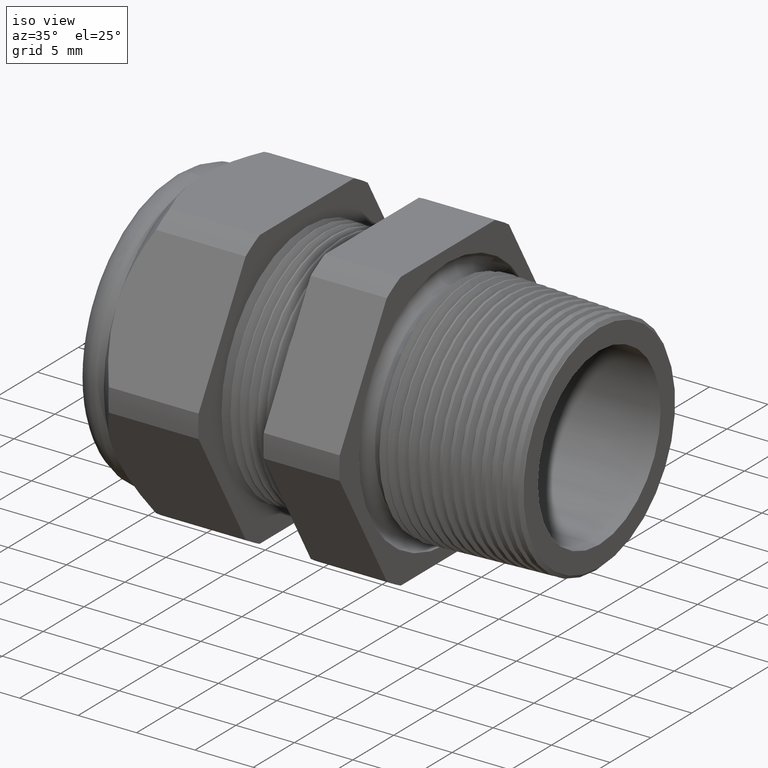
[diagram: clean part render]
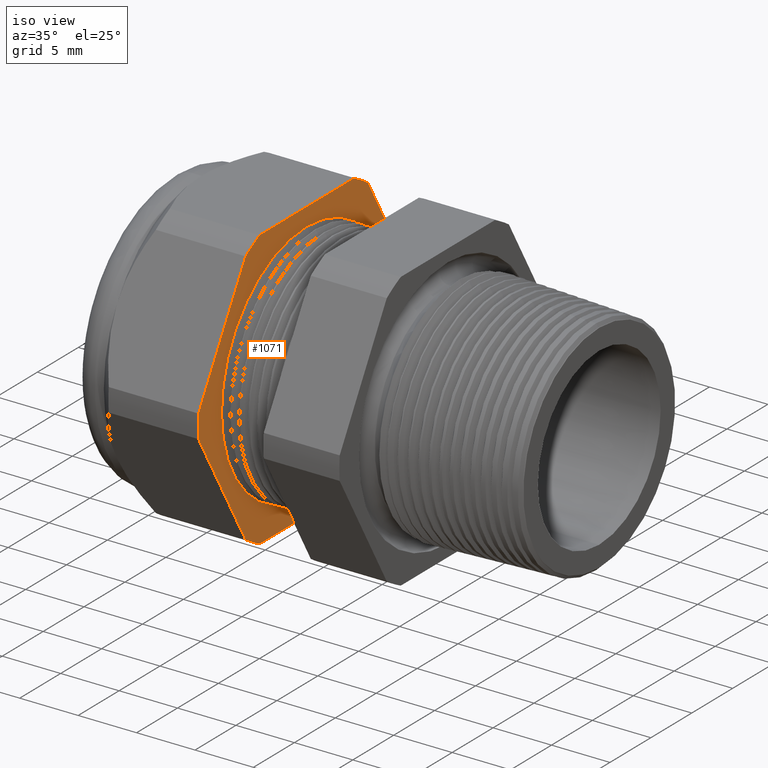
[diagram: same view with one face highlighted and labeled with its STEP entity id]
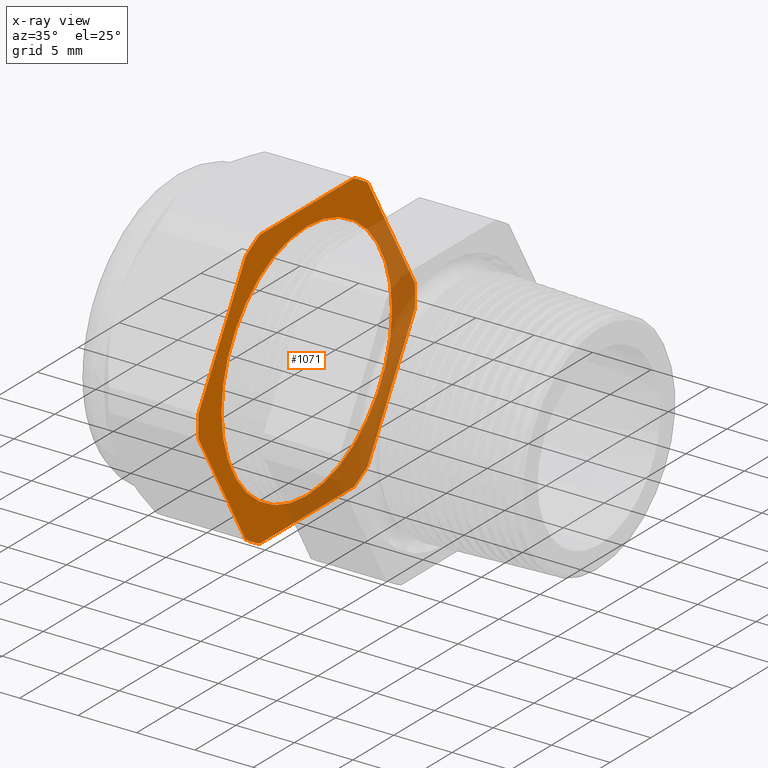
[diagram: x-ray of the same camera — body ghosted, the highlighted face saturated]
A machine part, iso view. The second image highlights one B-rep face of the part: STEP entity #1071.
The next image is the same camera in x-ray: the body ghosted, the highlighted face saturated — about 38% of this face is hidden behind the body in this view.
In plain terms, the highlighted planar face has unit normal (1, 0, 0).
Its self-contained STEP definition (entity closure, byte-faithful):
#10 = VERTEX_POINT ( 'NONE', #1767 ) ;
#25 = VERTEX_POINT ( 'NONE', #1793 ) ;
#26 = EDGE_CURVE ( 'NONE', #72, #25, #1792, .T. ) ;
#72 = VERTEX_POINT ( 'NONE', #1898 ) ;
#221 = EDGE_CURVE ( 'NONE', #226, #463, #2197, .T. ) ;
#225 = VERTEX_POINT ( 'NONE', #2185 ) ;
#226 = VERTEX_POINT ( 'NONE', #2184 ) ;
#261 = EDGE_CURVE ( 'NONE', #10, #226, #2288, .T. ) ;
#280 = VERTEX_POINT ( 'NONE', #2353 ) ;
#285 = EDGE_CURVE ( 'NONE', #225, #10, #2342, .T. ) ;
#293 = EDGE_CURVE ( 'NONE', #626, #280, #2385, .T. ) ;
#403 = VERTEX_POINT ( 'NONE', #2565 ) ;
#404 = EDGE_CURVE ( 'NONE', #280, #225, #2564, .T. ) ;
#426 = EDGE_CURVE ( 'NONE', #623, #605, #2591, .T. ) ;
#439 = VERTEX_POINT ( 'NONE', #2617 ) ;
#444 = EDGE_CURVE ( 'NONE', #403, #623, #2612, .T. ) ;
#454 = VERTEX_POINT ( 'NONE', #2641 ) ;
#460 = EDGE_CURVE ( 'NONE', #439, #403, #2693, .T. ) ;
#463 = VERTEX_POINT ( 'NONE', #2687 ) ;
#469 = EDGE_CURVE ( 'NONE', #463, #484, #2673, .T. ) ;
#476 = EDGE_CURVE ( 'NONE', #454, #439, #2723, .T. ) ;
#479 = EDGE_CURVE ( 'NONE', #484, #454, #2717, .T. ) ;
#484 = VERTEX_POINT ( 'NONE', #2706 ) ;
#605 = VERTEX_POINT ( 'NONE', #2922 ) ;
#623 = VERTEX_POINT ( 'NONE', #3003 ) ;
#626 = VERTEX_POINT ( 'NONE', #3000 ) ;
#627 = EDGE_CURVE ( 'NONE', #605, #626, #2995, .T. ) ;
#1057 = ORIENTED_EDGE ( 'NONE', *, *, #285, .T. ) ;
#1058 = ORIENTED_EDGE ( 'NONE', *, *, #261, .T. ) ;
#1059 = ORIENTED_EDGE ( 'NONE', *, *, #221, .T. ) ;
#1060 = ORIENTED_EDGE ( 'NONE', *, *, #469, .T. ) ;
#1061 = ORIENTED_EDGE ( 'NONE', *, *, #479, .T. ) ;
#1062 = ORIENTED_EDGE ( 'NONE', *, *, #476, .T. ) ;
#1063 = ORIENTED_EDGE ( 'NONE', *, *, #460, .T. ) ;
#1064 = ORIENTED_EDGE ( 'NONE', *, *, #444, .T. ) ;
#1065 = ORIENTED_EDGE ( 'NONE', *, *, #426, .T. ) ;
#1071 = ADVANCED_FACE ( 'NONE', ( #3836, #3835 ), #3834, .T. ) ;
#1072 = EDGE_LOOP ( 'NONE', ( #1073, #1075 ) ) ;
#1073 = ORIENTED_EDGE ( 'NONE', *, *, #1074, .F. ) ;
#1074 = EDGE_CURVE ( 'NONE', #25, #72, #3828, .T. ) ;
#1075 = ORIENTED_EDGE ( 'NONE', *, *, #26, .F. ) ;
#1076 = EDGE_LOOP ( 'NONE', ( #1077, #1078, #1079, #1057, #1058, #1059, #1060, #1061, #1062, #1063, #1064, #1065 ) ) ;
#1077 = ORIENTED_EDGE ( 'NONE', *, *, #627, .T. ) ;
#1078 = ORIENTED_EDGE ( 'NONE', *, *, #293, .T. ) ;
#1079 = ORIENTED_EDGE ( 'NONE', *, *, #404, .T. ) ;
#1767 = CARTESIAN_POINT ( 'NONE',  ( -0.7854330708661414500, 0.2264307620443832800, 0.4699999999999999200 ) ) ;
#1788 = DIRECTION ( 'NONE',  ( 0.0000000000000000000, 0.0000000000000000000, -1.000000000000000000 ) ) ;
#1789 = DIRECTION ( 'NONE',  ( 1.000000000000000000, 0.0000000000000000000, 0.0000000000000000000 ) ) ;
#1790 = CARTESIAN_POINT ( 'NONE',  ( -0.7854330708661414500, 0.0000000000000000000, 0.0000000000000000000 ) ) ;
#1791 = AXIS2_PLACEMENT_3D ( 'NONE', #1790, #1789, #1788 ) ;
#1792 = CIRCLE ( 'NONE', #1791, 0.4099999999999999800 ) ;
#1793 = CARTESIAN_POINT ( 'NONE',  ( -0.7854330708661414500, 0.0000000000000000000, 0.4099999999999999800 ) ) ;
#1898 = CARTESIAN_POINT ( 'NONE',  ( -0.7854330708661414500, 5.021051876504148100E-017, -0.4099999999999999800 ) ) ;
#2184 = CARTESIAN_POINT ( 'NONE',  ( -0.7854330708661414500, -0.2264307620443835600, 0.4699999999999997500 ) ) ;
#2185 = CARTESIAN_POINT ( 'NONE',  ( -0.7854330708661414500, 0.2938165587564945900, 0.4310947921287050500 ) ) ;
#2193 = DIRECTION ( 'NONE',  ( 0.0000000000000000000, 0.0000000000000000000, -1.000000000000000000 ) ) ;
#2194 = DIRECTION ( 'NONE',  ( 1.000000000000000000, 0.0000000000000000000, 0.0000000000000000000 ) ) ;
#2195 = CARTESIAN_POINT ( 'NONE',  ( -0.7854330708661414500, 0.0000000000000000000, 0.0000000000000000000 ) ) ;
#2196 = AXIS2_PLACEMENT_3D ( 'NONE', #2195, #2194, #2193 ) ;
#2197 = CIRCLE ( 'NONE', #2196, 0.5217000000000000500 ) ;
#2280 = DIRECTION ( 'NONE',  ( 0.0000000000000000000, -1.000000000000000000, 0.0000000000000000000 ) ) ;
#2281 = VECTOR ( 'NONE', #2280, 39.37007874015748100 ) ;
#2282 = CARTESIAN_POINT ( 'NONE',  ( -0.7854330708661414500, 0.4099999999999999800, 0.4699999999999999200 ) ) ;
#2288 = LINE ( 'NONE', #2282, #2281 ) ;
#2338 = DIRECTION ( 'NONE',  ( 0.0000000000000000000, 0.0000000000000000000, -1.000000000000000000 ) ) ;
#2339 = DIRECTION ( 'NONE',  ( 1.000000000000000000, 0.0000000000000000000, 0.0000000000000000000 ) ) ;
#2340 = CARTESIAN_POINT ( 'NONE',  ( -0.7854330708661414500, 0.0000000000000000000, 0.0000000000000000000 ) ) ;
#2341 = AXIS2_PLACEMENT_3D ( 'NONE', #2340, #2339, #2338 ) ;
#2342 = CIRCLE ( 'NONE', #2341, 0.5217000000000000500 ) ;
#2353 = CARTESIAN_POINT ( 'NONE',  ( -0.7854330708661414500, 0.5202473208008776600, 0.03890520787129488800 ) ) ;
#2381 = DIRECTION ( 'NONE',  ( 0.0000000000000000000, 0.0000000000000000000, -1.000000000000000000 ) ) ;
#2382 = DIRECTION ( 'NONE',  ( 1.000000000000000000, 0.0000000000000000000, 0.0000000000000000000 ) ) ;
#2383 = CARTESIAN_POINT ( 'NONE',  ( -0.7854330708661414500, 0.0000000000000000000, 0.0000000000000000000 ) ) ;
#2384 = AXIS2_PLACEMENT_3D ( 'NONE', #2383, #2382, #2381 ) ;
#2385 = CIRCLE ( 'NONE', #2384, 0.5217000000000000500 ) ;
#2561 = DIRECTION ( 'NONE',  ( 0.0000000000000000000, -0.4999999999999997200, 0.8660254037844388200 ) ) ;
#2562 = VECTOR ( 'NONE', #2561, 39.37007874015748900 ) ;
#2563 = CARTESIAN_POINT ( 'NONE',  ( -0.7854330708661414500, 0.5095319397786860500, 0.05746479222419000100 ) ) ;
#2564 = LINE ( 'NONE', #2563, #2562 ) ;
#2565 = CARTESIAN_POINT ( 'NONE',  ( -0.7854330708661414500, -0.2264307620443832300, -0.4699999999999999700 ) ) ;
#2587 = DIRECTION ( 'NONE',  ( 0.0000000000000000000, 0.0000000000000000000, -1.000000000000000000 ) ) ;
#2588 = DIRECTION ( 'NONE',  ( 1.000000000000000000, 0.0000000000000000000, 0.0000000000000000000 ) ) ;
#2589 = CARTESIAN_POINT ( 'NONE',  ( -0.7854330708661414500, 0.0000000000000000000, 0.0000000000000000000 ) ) ;
#2590 = AXIS2_PLACEMENT_3D ( 'NONE', #2589, #2588, #2587 ) ;
#2591 = CIRCLE ( 'NONE', #2590, 0.5217000000000000500 ) ;
#2609 = DIRECTION ( 'NONE',  ( 0.0000000000000000000, 1.000000000000000000, 0.0000000000000000000 ) ) ;
#2610 = VECTOR ( 'NONE', #2609, 39.37007874015748100 ) ;
#2611 = CARTESIAN_POINT ( 'NONE',  ( -0.7854330708661414500, 0.4099999999999999800, -0.4699999999999999700 ) ) ;
#2612 = LINE ( 'NONE', #2611, #2610 ) ;
#2617 = CARTESIAN_POINT ( 'NONE',  ( -0.7854330708661414500, -0.2938165587564944800, -0.4310947921287051100 ) ) ;
#2641 = CARTESIAN_POINT ( 'NONE',  ( -0.7854330708661414500, -0.5202473208008777700, -0.03890520787129494300 ) ) ;
#2666 = DIRECTION ( 'NONE',  ( 0.0000000000000000000, -0.4999999999999998300, -0.8660254037844388200 ) ) ;
#2667 = VECTOR ( 'NONE', #2666, 39.37007874015748100 ) ;
#2668 = CARTESIAN_POINT ( 'NONE',  ( -0.7854330708661414500, -0.3045319397786863100, 0.4125352077758098200 ) ) ;
#2673 = LINE ( 'NONE', #2668, #2667 ) ;
#2687 = CARTESIAN_POINT ( 'NONE',  ( -0.7854330708661414500, -0.2938165587564947100, 0.4310947921287050500 ) ) ;
#2689 = DIRECTION ( 'NONE',  ( 0.0000000000000000000, 0.0000000000000000000, -1.000000000000000000 ) ) ;
#2690 = DIRECTION ( 'NONE',  ( 1.000000000000000000, 0.0000000000000000000, 0.0000000000000000000 ) ) ;
#2691 = CARTESIAN_POINT ( 'NONE',  ( -0.7854330708661414500, 0.0000000000000000000, 0.0000000000000000000 ) ) ;
#2692 = AXIS2_PLACEMENT_3D ( 'NONE', #2691, #2690, #2689 ) ;
#2693 = CIRCLE ( 'NONE', #2692, 0.5217000000000000500 ) ;
#2706 = CARTESIAN_POINT ( 'NONE',  ( -0.7854330708661414500, -0.5202473208008777700, 0.03890520787129464500 ) ) ;
#2708 = DIRECTION ( 'NONE',  ( 0.0000000000000000000, 0.0000000000000000000, -1.000000000000000000 ) ) ;
#2709 = DIRECTION ( 'NONE',  ( 1.000000000000000000, 0.0000000000000000000, 0.0000000000000000000 ) ) ;
#2710 = AXIS2_PLACEMENT_3D ( 'NONE', #2718, #2709, #2708 ) ;
#2717 = CIRCLE ( 'NONE', #2710, 0.5217000000000000500 ) ;
#2718 = CARTESIAN_POINT ( 'NONE',  ( -0.7854330708661414500, 0.0000000000000000000, 0.0000000000000000000 ) ) ;
#2720 = DIRECTION ( 'NONE',  ( 0.0000000000000000000, 0.4999999999999998900, -0.8660254037844386000 ) ) ;
#2721 = VECTOR ( 'NONE', #2720, 39.37007874015748900 ) ;
#2722 = CARTESIAN_POINT ( 'NONE',  ( -0.7854330708661414500, -0.3045319397786863100, -0.4125352077758099300 ) ) ;
#2723 = LINE ( 'NONE', #2722, #2721 ) ;
#2922 = CARTESIAN_POINT ( 'NONE',  ( -0.7854330708661414500, 0.2938165587564947100, -0.4310947921287049400 ) ) ;
#2992 = DIRECTION ( 'NONE',  ( 0.0000000000000000000, 0.4999999999999998300, 0.8660254037844388200 ) ) ;
#2993 = VECTOR ( 'NONE', #2992, 39.37007874015748100 ) ;
#2994 = CARTESIAN_POINT ( 'NONE',  ( -0.7854330708661414500, 0.5095319397786860500, -0.05746479222419002100 ) ) ;
#2995 = LINE ( 'NONE', #2994, #2993 ) ;
#3000 = CARTESIAN_POINT ( 'NONE',  ( -0.7854330708661414500, 0.5202473208008777700, -0.03890520787129476300 ) ) ;
#3003 = CARTESIAN_POINT ( 'NONE',  ( -0.7854330708661414500, 0.2264307620443832800, -0.4699999999999999700 ) ) ;
#3824 = DIRECTION ( 'NONE',  ( 0.0000000000000000000, 0.0000000000000000000, -1.000000000000000000 ) ) ;
#3825 = DIRECTION ( 'NONE',  ( 1.000000000000000000, 0.0000000000000000000, 0.0000000000000000000 ) ) ;
#3826 = CARTESIAN_POINT ( 'NONE',  ( -0.7854330708661414500, 0.0000000000000000000, 0.0000000000000000000 ) ) ;
#3827 = AXIS2_PLACEMENT_3D ( 'NONE', #3826, #3825, #3824 ) ;
#3828 = CIRCLE ( 'NONE', #3827, 0.4099999999999999800 ) ;
#3829 = DIRECTION ( 'NONE',  ( 0.0000000000000000000, 0.0000000000000000000, -1.000000000000000000 ) ) ;
#3830 = DIRECTION ( 'NONE',  ( 1.000000000000000000, 0.0000000000000000000, 0.0000000000000000000 ) ) ;
#3831 = CARTESIAN_POINT ( 'NONE',  ( -0.7854330708661414500, 0.4099999999999999800, 0.0000000000000000000 ) ) ;
#3833 = AXIS2_PLACEMENT_3D ( 'NONE', #3831, #3830, #3829 ) ;
#3834 = PLANE ( 'NONE',  #3833 ) ;
#3835 = FACE_OUTER_BOUND ( 'NONE', #1076, .T. ) ;
#3836 = FACE_BOUND ( 'NONE', #1072, .T. ) ;